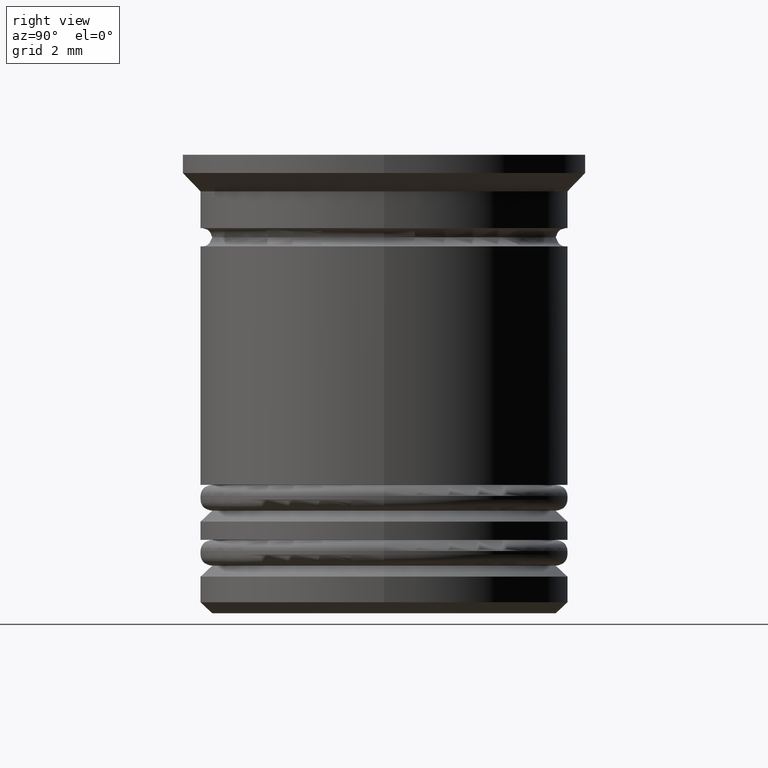
[diagram: clean part render]
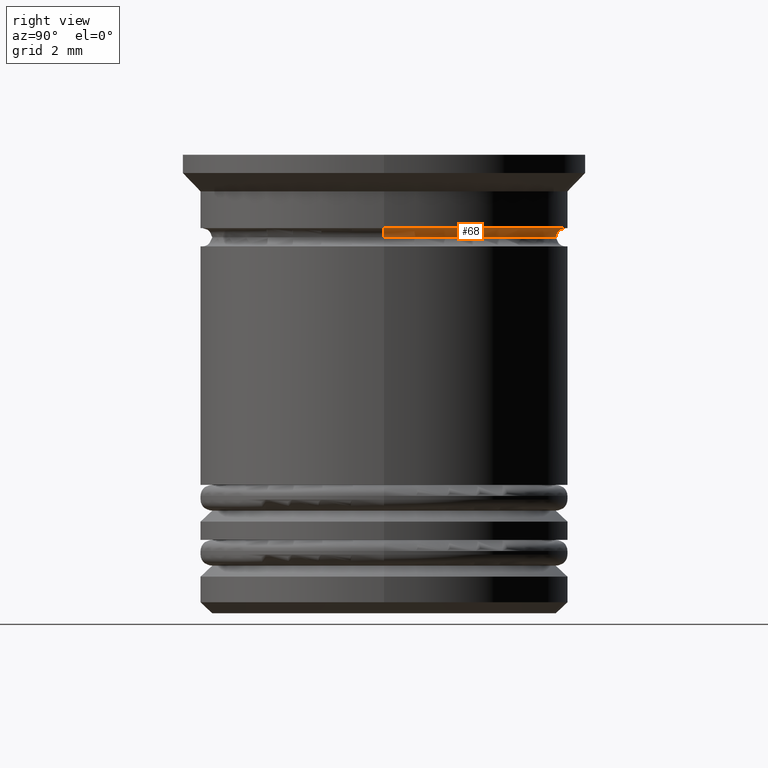
[diagram: same view with one face highlighted and labeled with its STEP entity id]
A machine part, right view. The second image highlights one B-rep face of the part: STEP entity #68.
In plain terms, the highlighted toroidal blend (fillet) surface has major radius 4.95 mm and minor (blend) radius 0.25 mm.
Its self-contained STEP definition (entity closure, byte-faithful):
#55 = CARTESIAN_POINT ( 'NONE',  ( 0.000000000000000000, 0.000000000000000000, -2.250000000000000444 ) ) ;
#58 = VERTEX_POINT ( 'NONE', #1956 ) ;
#68 = ADVANCED_FACE ( 'NONE', ( #1008 ), #1059, .F. ) ;
#152 = ORIENTED_EDGE ( 'NONE', *, *, #387, .F. ) ;
#203 = AXIS2_PLACEMENT_3D ( 'NONE', #55, #1321, #1994 ) ;
#212 = CIRCLE ( 'NONE', #319, 0.2500000000000002220 ) ;
#218 = DIRECTION ( 'NONE',  ( 1.224646799147353207E-16, 1.000000000000000000, 0.000000000000000000 ) ) ;
#239 = CARTESIAN_POINT ( 'NONE',  ( 0.000000000000000000, 0.000000000000000000, -2.250000000000000444 ) ) ;
#319 = AXIS2_PLACEMENT_3D ( 'NONE', #879, #905, #1732 ) ;
#325 = VERTEX_POINT ( 'NONE', #1482 ) ;
#387 = EDGE_CURVE ( 'NONE', #2042, #495, #571, .T. ) ;
#416 = AXIS2_PLACEMENT_3D ( 'NONE', #1669, #1698, #443 ) ;
#443 = DIRECTION ( 'NONE',  ( 1.000000000000000000, 0.000000000000000000, 0.000000000000000000 ) ) ;
#495 = VERTEX_POINT ( 'NONE', #614 ) ;
#517 = DIRECTION ( 'NONE',  ( 1.000000000000000000, 0.000000000000000000, 0.000000000000000000 ) ) ;
#571 = CIRCLE ( 'NONE', #416, 4.950000000000000178 ) ;
#614 = CARTESIAN_POINT ( 'NONE',  ( -4.950000000000000178, 6.062001655779398511E-16, -2.000000000000000000 ) ) ;
#698 = CIRCLE ( 'NONE', #1675, 0.2500000000000002220 ) ;
#836 = DIRECTION ( 'NONE',  ( -1.000000000000000000, 1.224646799147353454E-16, 0.000000000000000000 ) ) ;
#840 = ORIENTED_EDGE ( 'NONE', *, *, #1233, .T. ) ;
#856 = EDGE_CURVE ( 'NONE', #495, #58, #698, .T. ) ;
#858 = EDGE_LOOP ( 'NONE', ( #1550, #840, #1490, #152 ) ) ;
#862 = AXIS2_PLACEMENT_3D ( 'NONE', #239, #1969, #517 ) ;
#879 = CARTESIAN_POINT ( 'NONE',  ( 4.950000000000000178, 0.000000000000000000, -2.250000000000000444 ) ) ;
#905 = DIRECTION ( 'NONE',  ( 0.000000000000000000, -1.000000000000000000, 0.000000000000000000 ) ) ;
#1008 = FACE_OUTER_BOUND ( 'NONE', #858, .T. ) ;
#1059 = TOROIDAL_SURFACE ( 'NONE', #203, 4.950000000000000178, 0.2500000000000002220 ) ;
#1232 = CIRCLE ( 'NONE', #862, 4.700000000000000178 ) ;
#1233 = EDGE_CURVE ( 'NONE', #325, #58, #1232, .T. ) ;
#1315 = EDGE_CURVE ( 'NONE', #2042, #325, #212, .T. ) ;
#1321 = DIRECTION ( 'NONE',  ( -0.000000000000000000, -0.000000000000000000, 1.000000000000000000 ) ) ;
#1415 = CARTESIAN_POINT ( 'NONE',  ( 4.950000000000000178, 0.000000000000000000, -2.000000000000000000 ) ) ;
#1482 = CARTESIAN_POINT ( 'NONE',  ( 4.700000000000000178, 0.000000000000000000, -2.250000000000000444 ) ) ;
#1490 = ORIENTED_EDGE ( 'NONE', *, *, #856, .F. ) ;
#1550 = ORIENTED_EDGE ( 'NONE', *, *, #1315, .T. ) ;
#1669 = CARTESIAN_POINT ( 'NONE',  ( 0.000000000000000000, 0.000000000000000000, -2.000000000000000000 ) ) ;
#1675 = AXIS2_PLACEMENT_3D ( 'NONE', #1953, #218, #836 ) ;
#1698 = DIRECTION ( 'NONE',  ( -0.000000000000000000, -0.000000000000000000, 1.000000000000000000 ) ) ;
#1732 = DIRECTION ( 'NONE',  ( 0.000000000000000000, 0.000000000000000000, -1.000000000000000000 ) ) ;
#1953 = CARTESIAN_POINT ( 'NONE',  ( -4.950000000000000178, 6.062001655779398511E-16, -2.250000000000000444 ) ) ;
#1956 = CARTESIAN_POINT ( 'NONE',  ( -4.700000000000000178, 5.755839955992559655E-16, -2.250000000000000444 ) ) ;
#1969 = DIRECTION ( 'NONE',  ( -0.000000000000000000, -0.000000000000000000, 1.000000000000000000 ) ) ;
#1994 = DIRECTION ( 'NONE',  ( 1.000000000000000000, 0.000000000000000000, 0.000000000000000000 ) ) ;
#2042 = VERTEX_POINT ( 'NONE', #1415 ) ;